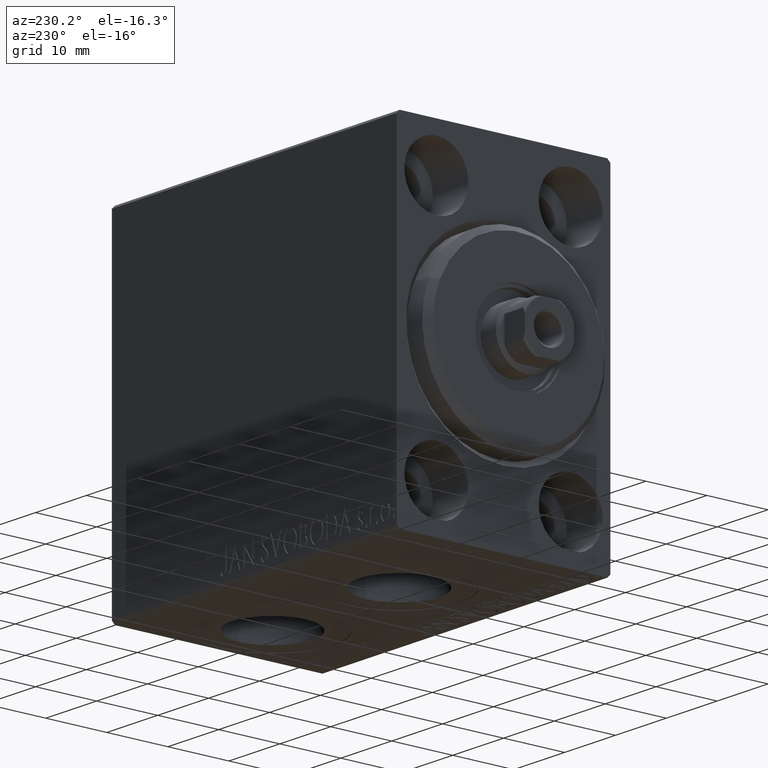
[diagram: clean part render]
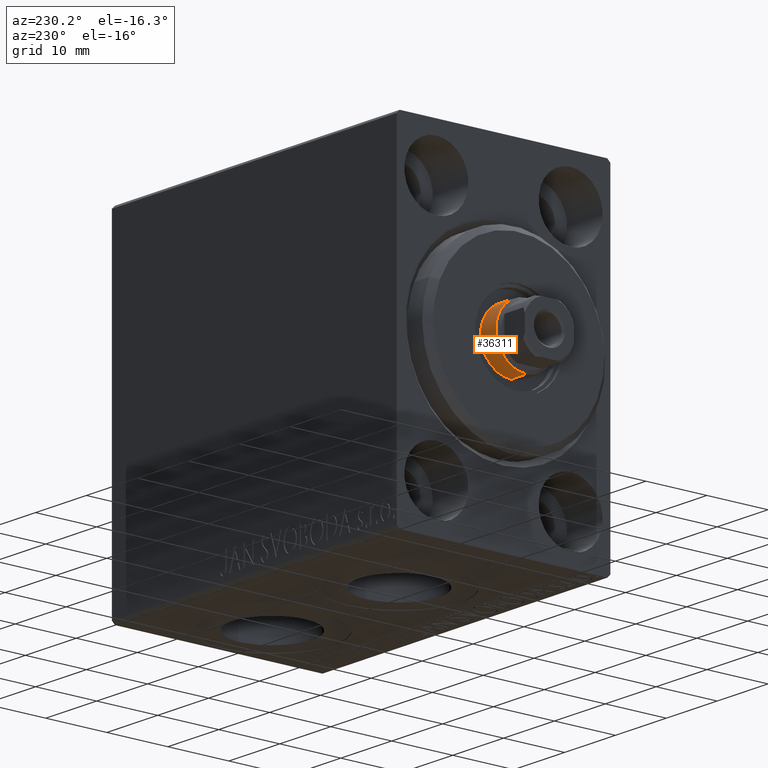
[diagram: same view with one face highlighted and labeled with its STEP entity id]
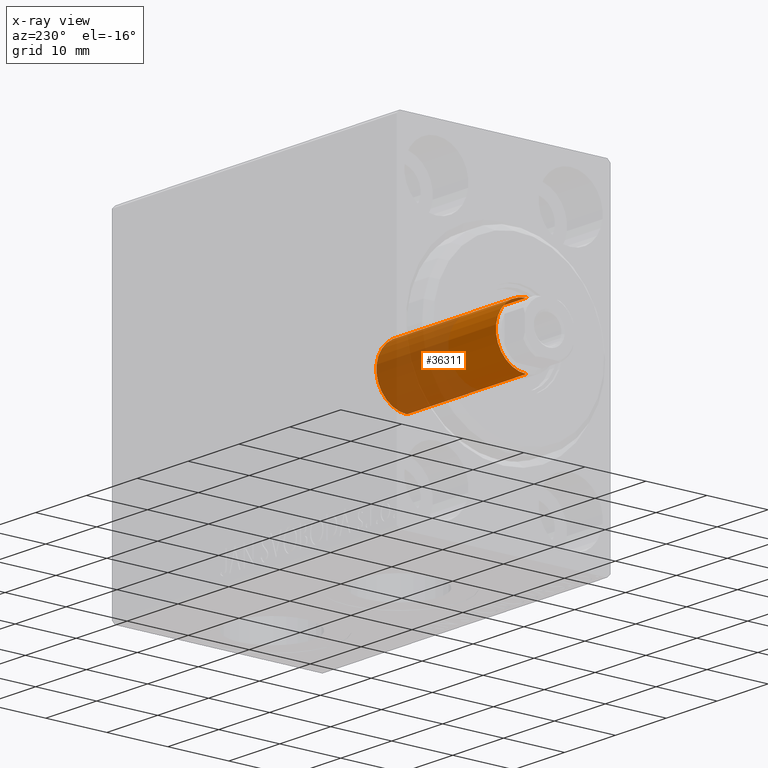
[diagram: x-ray of the same camera — body ghosted, the highlighted face saturated]
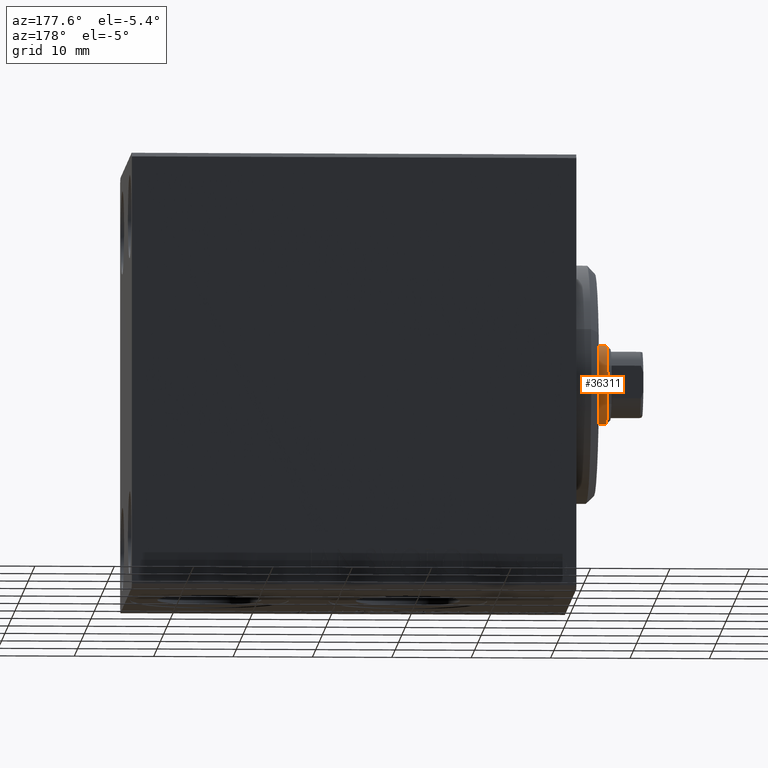
[diagram: same view with one face highlighted and labeled with its STEP entity id]
A machine part, auxiliary view. The second image highlights one B-rep face of the part: STEP entity #36311.
The next image is the same camera in x-ray: the body ghosted, the highlighted face saturated — about 60% of this face is hidden behind the body in this view.
A second angle (auxiliary view) of the same face is appended — the face is thin or edge-on in the first view.
In plain terms, the highlighted cylindrical surface (partial cylindrical patch) has radius 5 mm, axis along (1, -0, -0).
Its self-contained STEP definition (entity closure, byte-faithful):
#348 = DIRECTION ( 'NONE',  ( 0.000000000000000000, 0.000000000000000000, -1.000000000000000000 ) ) ;
#2384 = AXIS2_PLACEMENT_3D ( 'NONE', #17257, #348, #41097 ) ;
#4148 = FACE_OUTER_BOUND ( 'NONE', #20401, .T. ) ;
#4946 = DIRECTION ( 'NONE',  ( -0.000000000000000000, -0.000000000000000000, -1.000000000000000000 ) ) ;
#7074 = EDGE_CURVE ( 'NONE', #15732, #9791, #22492, .T. ) ;
#7666 = CARTESIAN_POINT ( 'NONE',  ( 5.000000000000000000, 6.123233995736766282E-16, 55.50000000000001421 ) ) ;
#9791 = VERTEX_POINT ( 'NONE', #19897 ) ;
#11633 = LINE ( 'NONE', #38783, #32820 ) ;
#12569 = ORIENTED_EDGE ( 'NONE', *, *, #41699, .F. ) ;
#13133 = ORIENTED_EDGE ( 'NONE', *, *, #42460, .T. ) ;
#14485 = CARTESIAN_POINT ( 'NONE',  ( -5.000000000000000000, 0.000000000000000000, 55.50000000000001421 ) ) ;
#14603 = DIRECTION ( 'NONE',  ( -1.000000000000000000, 0.000000000000000000, 0.000000000000000000 ) ) ;
#15732 = VERTEX_POINT ( 'NONE', #31059 ) ;
#17257 = CARTESIAN_POINT ( 'NONE',  ( 0.000000000000000000, 0.000000000000000000, 55.50000000000001421 ) ) ;
#17668 = VERTEX_POINT ( 'NONE', #14485 ) ;
#18227 = AXIS2_PLACEMENT_3D ( 'NONE', #23044, #43537, #43757 ) ;
#19897 = CARTESIAN_POINT ( 'NONE',  ( -5.000000000000000000, 0.000000000000000000, 32.00000000000000000 ) ) ;
#20157 = AXIS2_PLACEMENT_3D ( 'NONE', #27543, #24190, #14603 ) ;
#20401 = EDGE_LOOP ( 'NONE', ( #13133, #41505, #23788, #12569 ) ) ;
#22492 = CIRCLE ( 'NONE', #18227, 5.000000000000000000 ) ;
#23044 = CARTESIAN_POINT ( 'NONE',  ( 0.000000000000000000, 0.000000000000000000, 32.00000000000000000 ) ) ;
#23788 = ORIENTED_EDGE ( 'NONE', *, *, #7074, .T. ) ;
#24190 = DIRECTION ( 'NONE',  ( -0.000000000000000000, -0.000000000000000000, -1.000000000000000000 ) ) ;
#24553 = CARTESIAN_POINT ( 'NONE',  ( -5.000000000000000000, 0.000000000000000000, 56.00000000000000000 ) ) ;
#25375 = VERTEX_POINT ( 'NONE', #7666 ) ;
#27543 = CARTESIAN_POINT ( 'NONE',  ( 0.000000000000000000, 0.000000000000000000, 56.00000000000000000 ) ) ;
#30151 = CIRCLE ( 'NONE', #2384, 5.000000000000000000 ) ;
#31059 = CARTESIAN_POINT ( 'NONE',  ( 5.000000000000000000, 6.123233995736766282E-16, 32.00000000000000000 ) ) ;
#31341 = EDGE_CURVE ( 'NONE', #25375, #15732, #11633, .T. ) ;
#31899 = DIRECTION ( 'NONE',  ( -0.000000000000000000, -0.000000000000000000, -1.000000000000000000 ) ) ;
#32820 = VECTOR ( 'NONE', #4946, 1000.000000000000000 ) ;
#34788 = LINE ( 'NONE', #24553, #36529 ) ;
#36311 = ADVANCED_FACE ( 'NONE', ( #4148 ), #41115, .T. ) ;
#36529 = VECTOR ( 'NONE', #31899, 1000.000000000000000 ) ;
#38783 = CARTESIAN_POINT ( 'NONE',  ( 5.000000000000000000, 6.123233995736766282E-16, 56.00000000000000000 ) ) ;
#41097 = DIRECTION ( 'NONE',  ( 1.000000000000000000, 0.000000000000000000, 0.000000000000000000 ) ) ;
#41115 = CYLINDRICAL_SURFACE ( 'NONE', #20157, 5.000000000000000000 ) ;
#41505 = ORIENTED_EDGE ( 'NONE', *, *, #31341, .T. ) ;
#41699 = EDGE_CURVE ( 'NONE', #17668, #9791, #34788, .T. ) ;
#42460 = EDGE_CURVE ( 'NONE', #17668, #25375, #30151, .T. ) ;
#43537 = DIRECTION ( 'NONE',  ( 0.000000000000000000, 0.000000000000000000, 1.000000000000000000 ) ) ;
#43757 = DIRECTION ( 'NONE',  ( 1.000000000000000000, 0.000000000000000000, 0.000000000000000000 ) ) ;